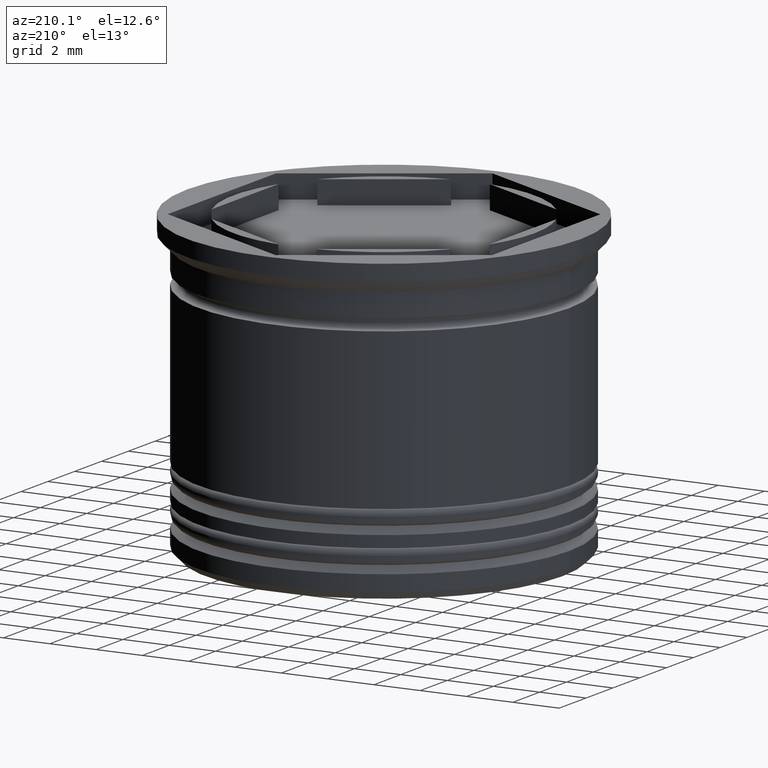
[diagram: clean part render]
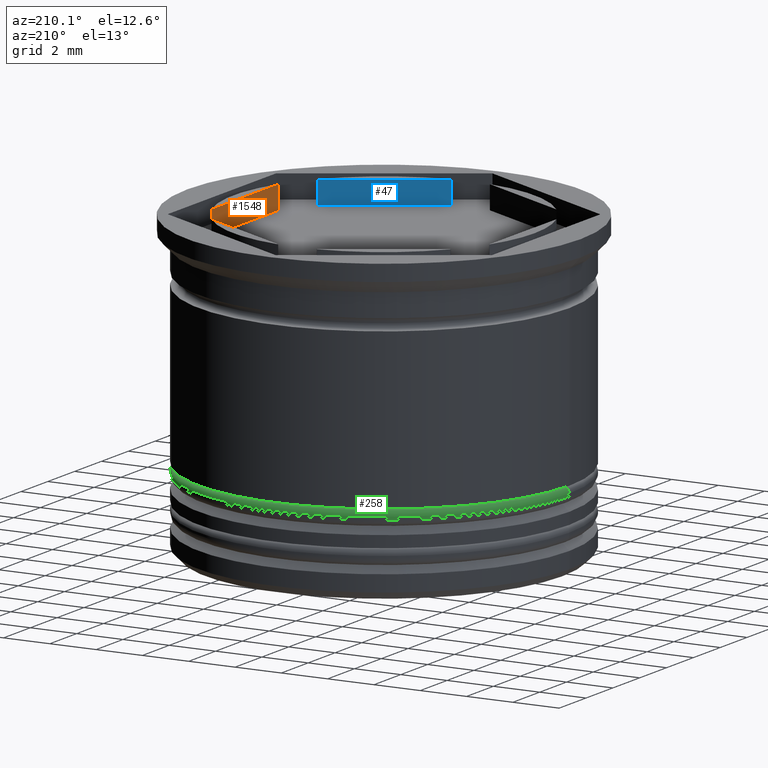
[diagram: same view with three faces highlighted in distinct colors, each labeled with its STEP entity id]
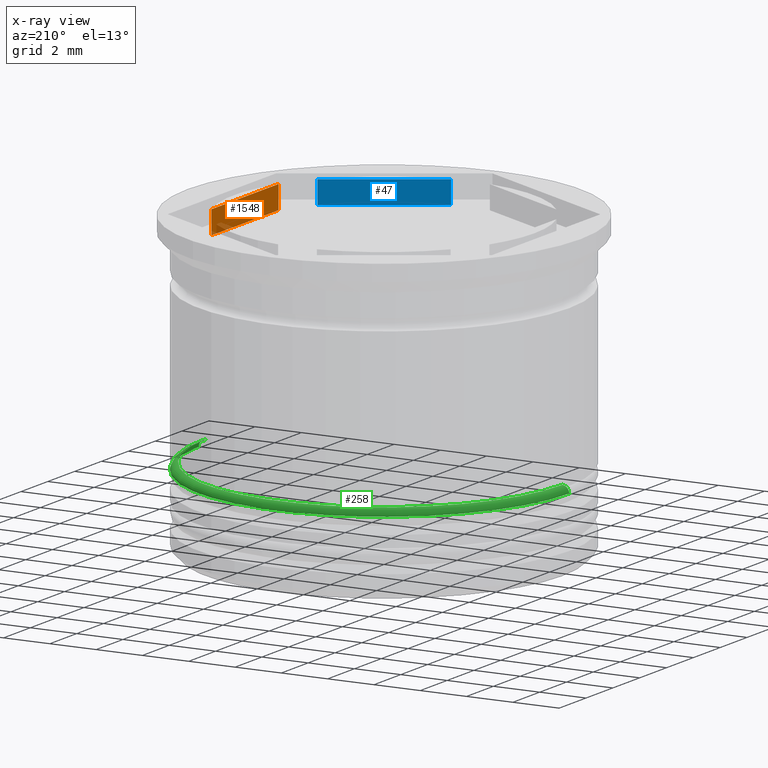
[diagram: x-ray of the same camera — body ghosted, the three highlighted faces saturated]
A machine part, auxiliary view with three faces highlighted in distinct colors.
The next image is the same camera in x-ray (body ghosted, the three faces saturated) — at least one of them is partly hidden behind the body in this view.
Their STEP definitions:

[orange] entity #1548 — the highlighted planar face has unit normal (1, -0, 0).
#133 = LINE ( 'NONE', #755, #1387 ) ;
#200 = ORIENTED_EDGE ( 'NONE', *, *, #767, .T. ) ;
#222 = DIRECTION ( 'NONE',  ( 1.000000000000000000, -2.503857664561931390E-16, 0.000000000000000000 ) ) ;
#232 = LINE ( 'NONE', #1346, #1700 ) ;
#303 = LINE ( 'NONE', #451, #1702 ) ;
#421 = ORIENTED_EDGE ( 'NONE', *, *, #1088, .T. ) ;
#451 = CARTESIAN_POINT ( 'NONE',  ( 5.999999999999999112, -2.500000000000003109, 18.38477631085023134 ) ) ;
#553 = DIRECTION ( 'NONE',  ( 2.503857664561931390E-16, 1.000000000000000000, 0.000000000000000000 ) ) ;
#584 = EDGE_LOOP ( 'NONE', ( #421, #1434, #200, #1949 ) ) ;
#590 = VERTEX_POINT ( 'NONE', #1906 ) ;
#656 = CARTESIAN_POINT ( 'NONE',  ( 5.999999999999999112, -2.500000000000003109, -1.000000000000000888 ) ) ;
#692 = FACE_OUTER_BOUND ( 'NONE', #584, .T. ) ;
#755 = CARTESIAN_POINT ( 'NONE',  ( 6.000000000000000000, -1.502314598737158834E-15, 0.000000000000000000 ) ) ;
#767 = EDGE_CURVE ( 'NONE', #1111, #1984, #232, .T. ) ;
#816 = PLANE ( 'NONE',  #1537 ) ;
#893 = LINE ( 'NONE', #1952, #1089 ) ;
#1010 = EDGE_CURVE ( 'NONE', #1090, #1984, #303, .T. ) ;
#1088 = EDGE_CURVE ( 'NONE', #1090, #590, #133, .T. ) ;
#1089 = VECTOR ( 'NONE', #1786, 1000.000000000000000 ) ;
#1090 = VERTEX_POINT ( 'NONE', #1226 ) ;
#1111 = VERTEX_POINT ( 'NONE', #1753 ) ;
#1165 = DIRECTION ( 'NONE',  ( -2.503857664561931390E-16, -1.000000000000000000, 0.000000000000000000 ) ) ;
#1226 = CARTESIAN_POINT ( 'NONE',  ( 5.999999999999999112, -2.500000000000003109, 0.000000000000000000 ) ) ;
#1240 = EDGE_CURVE ( 'NONE', #1111, #590, #893, .T. ) ;
#1273 = CARTESIAN_POINT ( 'NONE',  ( 5.999999999999999112, -3.464101615137755719, -19.33030277982335932 ) ) ;
#1346 = CARTESIAN_POINT ( 'NONE',  ( 5.999999999999999112, -3.464101615137755719, -1.000000000000000888 ) ) ;
#1387 = VECTOR ( 'NONE', #1520, 1000.000000000000000 ) ;
#1434 = ORIENTED_EDGE ( 'NONE', *, *, #1240, .F. ) ;
#1520 = DIRECTION ( 'NONE',  ( 2.503857664561931390E-16, 1.000000000000000000, 0.000000000000000000 ) ) ;
#1537 = AXIS2_PLACEMENT_3D ( 'NONE', #1273, #222, #553 ) ;
#1548 = ADVANCED_FACE ( 'NONE', ( #692 ), #816, .F. ) ;
#1700 = VECTOR ( 'NONE', #1165, 1000.000000000000000 ) ;
#1702 = VECTOR ( 'NONE', #1886, 1000.000000000000000 ) ;
#1753 = CARTESIAN_POINT ( 'NONE',  ( 6.000000000000000888, 2.500000000000000444, -1.000000000000000888 ) ) ;
#1786 = DIRECTION ( 'NONE',  ( 0.000000000000000000, 0.000000000000000000, 1.000000000000000000 ) ) ;
#1886 = DIRECTION ( 'NONE',  ( -0.000000000000000000, -0.000000000000000000, -1.000000000000000000 ) ) ;
#1906 = CARTESIAN_POINT ( 'NONE',  ( 6.000000000000000888, 2.500000000000000444, 0.000000000000000000 ) ) ;
#1949 = ORIENTED_EDGE ( 'NONE', *, *, #1010, .F. ) ;
#1952 = CARTESIAN_POINT ( 'NONE',  ( 6.000000000000000888, 2.500000000000000444, 18.38477631085023134 ) ) ;
#1984 = VERTEX_POINT ( 'NONE', #656 ) ;

[blue] entity #47 — the highlighted planar face has unit normal (0.5, -0.866, 0).
#47 = ADVANCED_FACE ( 'NONE', ( #1065 ), #1821, .F. ) ;
#50 = DIRECTION ( 'NONE',  ( 0.8660254037844388186, 0.4999999999999998335, 0.000000000000000000 ) ) ;
#64 = EDGE_CURVE ( 'NONE', #1491, #1291, #1522, .T. ) ;
#93 = LINE ( 'NONE', #991, #382 ) ;
#297 = DIRECTION ( 'NONE',  ( 0.4999999999999998335, -0.8660254037844388186, 0.000000000000000000 ) ) ;
#340 = VECTOR ( 'NONE', #1992, 1000.000000000000000 ) ;
#382 = VECTOR ( 'NONE', #1942, 999.9999999999998863 ) ;
#383 = CARTESIAN_POINT ( 'NONE',  ( 5.165063509461093716, -3.946152422706633356, 0.000000000000000000 ) ) ;
#391 = CARTESIAN_POINT ( 'NONE',  ( 2.999999999999998224, -5.196152422706632912, 0.000000000000000000 ) ) ;
#663 = VERTEX_POINT ( 'NONE', #383 ) ;
#703 = CARTESIAN_POINT ( 'NONE',  ( 0.8349364905389020652, -6.446152422706632024, 0.000000000000000000 ) ) ;
#714 = ORIENTED_EDGE ( 'NONE', *, *, #1422, .F. ) ;
#720 = EDGE_CURVE ( 'NONE', #1784, #1291, #93, .T. ) ;
#833 = CARTESIAN_POINT ( 'NONE',  ( 5.165063509461095492, -3.946152422706636909, -1.000000000000000888 ) ) ;
#913 = DIRECTION ( 'NONE',  ( 0.8660254037844387076, 0.4999999999999997780, 0.000000000000000000 ) ) ;
#931 = VECTOR ( 'NONE', #1430, 1000.000000000000000 ) ;
#943 = LINE ( 'NONE', #1563, #931 ) ;
#991 = CARTESIAN_POINT ( 'NONE',  ( -4.336808689942017736E-16, -6.928203230275508773, -1.000000000000000888 ) ) ;
#1065 = FACE_OUTER_BOUND ( 'NONE', #1512, .T. ) ;
#1123 = LINE ( 'NONE', #391, #1444 ) ;
#1224 = ORIENTED_EDGE ( 'NONE', *, *, #1556, .T. ) ;
#1291 = VERTEX_POINT ( 'NONE', #1834 ) ;
#1364 = ORIENTED_EDGE ( 'NONE', *, *, #720, .T. ) ;
#1384 = CARTESIAN_POINT ( 'NONE',  ( 0.8349364905389003999, -6.446152422706632912, 18.38477631085023134 ) ) ;
#1422 = EDGE_CURVE ( 'NONE', #1784, #663, #943, .T. ) ;
#1430 = DIRECTION ( 'NONE',  ( 0.000000000000000000, 0.000000000000000000, 1.000000000000000000 ) ) ;
#1435 = AXIS2_PLACEMENT_3D ( 'NONE', #1680, #297, #913 ) ;
#1444 = VECTOR ( 'NONE', #50, 999.9999999999998863 ) ;
#1491 = VERTEX_POINT ( 'NONE', #703 ) ;
#1512 = EDGE_LOOP ( 'NONE', ( #1224, #714, #1364, #1600 ) ) ;
#1522 = LINE ( 'NONE', #1384, #340 ) ;
#1556 = EDGE_CURVE ( 'NONE', #1491, #663, #1123, .T. ) ;
#1563 = CARTESIAN_POINT ( 'NONE',  ( 5.165063509461097269, -3.946152422706632468, 18.38477631085023134 ) ) ;
#1600 = ORIENTED_EDGE ( 'NONE', *, *, #64, .F. ) ;
#1680 = CARTESIAN_POINT ( 'NONE',  ( -4.336808689942017736E-16, -6.928203230275508773, -19.33030277982335932 ) ) ;
#1784 = VERTEX_POINT ( 'NONE', #833 ) ;
#1821 = PLANE ( 'NONE',  #1435 ) ;
#1834 = CARTESIAN_POINT ( 'NONE',  ( 0.8349364905389047298, -6.446152422706633800, -1.000000000000000888 ) ) ;
#1942 = DIRECTION ( 'NONE',  ( -0.8660254037844388186, -0.4999999999999998335, 0.000000000000000000 ) ) ;
#1992 = DIRECTION ( 'NONE',  ( -0.000000000000000000, -0.000000000000000000, -1.000000000000000000 ) ) ;

[green] entity #258 — the highlighted toroidal blend (fillet) surface has major radius 7.7 mm and minor (blend) radius 0.3 mm.
#6 = DIRECTION ( 'NONE',  ( -1.000000000000000000, 0.000000000000000000, 0.000000000000000000 ) ) ;
#84 = CIRCLE ( 'NONE', #1281, 8.000000000000001776 ) ;
#120 = DIRECTION ( 'NONE',  ( 0.000000000000000000, 0.000000000000000000, -1.000000000000000000 ) ) ;
#158 = DIRECTION ( 'NONE',  ( -1.000000000000000000, 0.000000000000000000, 0.000000000000000000 ) ) ;
#169 = ORIENTED_EDGE ( 'NONE', *, *, #1445, .T. ) ;
#188 = VERTEX_POINT ( 'NONE', #841 ) ;
#221 = EDGE_CURVE ( 'NONE', #1425, #1286, #981, .T. ) ;
#258 = ADVANCED_FACE ( 'NONE', ( #924 ), #1177, .T. ) ;
#273 = ORIENTED_EDGE ( 'NONE', *, *, #997, .F. ) ;
#327 = CARTESIAN_POINT ( 'NONE',  ( 7.700000000000001954, 9.429780353434622974E-16, -9.799999999999998934 ) ) ;
#407 = AXIS2_PLACEMENT_3D ( 'NONE', #1374, #894, #6 ) ;
#445 = ORIENTED_EDGE ( 'NONE', *, *, #624, .F. ) ;
#504 = DIRECTION ( 'NONE',  ( -1.000000000000000000, 0.000000000000000000, 0.000000000000000000 ) ) ;
#506 = DIRECTION ( 'NONE',  ( -0.000000000000000000, -1.000000000000000000, -0.000000000000000000 ) ) ;
#542 = AXIS2_PLACEMENT_3D ( 'NONE', #1212, #506, #120 ) ;
#624 = EDGE_CURVE ( 'NONE', #188, #874, #84, .T. ) ;
#764 = AXIS2_PLACEMENT_3D ( 'NONE', #1206, #784, #158 ) ;
#784 = DIRECTION ( 'NONE',  ( 0.000000000000000000, 0.000000000000000000, -1.000000000000000000 ) ) ;
#801 = CARTESIAN_POINT ( 'NONE',  ( 0.000000000000000000, 0.000000000000000000, -9.799999999999998934 ) ) ;
#841 = CARTESIAN_POINT ( 'NONE',  ( -8.000000000000001776, 9.797174393178827630E-16, -9.799999999999998934 ) ) ;
#864 = AXIS2_PLACEMENT_3D ( 'NONE', #327, #1096, #1411 ) ;
#874 = VERTEX_POINT ( 'NONE', #1724 ) ;
#894 = DIRECTION ( 'NONE',  ( -0.000000000000000000, -0.000000000000000000, 1.000000000000000000 ) ) ;
#924 = FACE_OUTER_BOUND ( 'NONE', #1345, .T. ) ;
#981 = CIRCLE ( 'NONE', #407, 7.700000000000001954 ) ;
#997 = EDGE_CURVE ( 'NONE', #1286, #188, #1317, .T. ) ;
#1066 = CARTESIAN_POINT ( 'NONE',  ( -7.700000000000001954, 0.000000000000000000, -9.500000000000000000 ) ) ;
#1096 = DIRECTION ( 'NONE',  ( -1.224646799147353207E-16, 1.000000000000000000, 0.000000000000000000 ) ) ;
#1132 = ORIENTED_EDGE ( 'NONE', *, *, #221, .F. ) ;
#1177 = TOROIDAL_SURFACE ( 'NONE', #764, 7.700000000000001954, 0.2999999999999999889 ) ;
#1206 = CARTESIAN_POINT ( 'NONE',  ( 0.000000000000000000, 0.000000000000000000, -9.799999999999998934 ) ) ;
#1212 = CARTESIAN_POINT ( 'NONE',  ( -7.700000000000001954, 0.000000000000000000, -9.799999999999998934 ) ) ;
#1281 = AXIS2_PLACEMENT_3D ( 'NONE', #801, #1885, #504 ) ;
#1286 = VERTEX_POINT ( 'NONE', #1066 ) ;
#1317 = CIRCLE ( 'NONE', #542, 0.2999999999999999334 ) ;
#1345 = EDGE_LOOP ( 'NONE', ( #1132, #169, #445, #273 ) ) ;
#1374 = CARTESIAN_POINT ( 'NONE',  ( 0.000000000000000000, 0.000000000000000000, -9.500000000000000000 ) ) ;
#1402 = CARTESIAN_POINT ( 'NONE',  ( 7.700000000000001954, 9.613477373306725302E-16, -9.500000000000000000 ) ) ;
#1411 = DIRECTION ( 'NONE',  ( -1.000000000000000000, -1.224646799147353207E-16, 0.000000000000000000 ) ) ;
#1425 = VERTEX_POINT ( 'NONE', #1402 ) ;
#1445 = EDGE_CURVE ( 'NONE', #1425, #874, #1567, .T. ) ;
#1567 = CIRCLE ( 'NONE', #864, 0.2999999999999999334 ) ;
#1724 = CARTESIAN_POINT ( 'NONE',  ( 8.000000000000001776, 0.000000000000000000, -9.799999999999998934 ) ) ;
#1885 = DIRECTION ( 'NONE',  ( 0.000000000000000000, 0.000000000000000000, -1.000000000000000000 ) ) ;